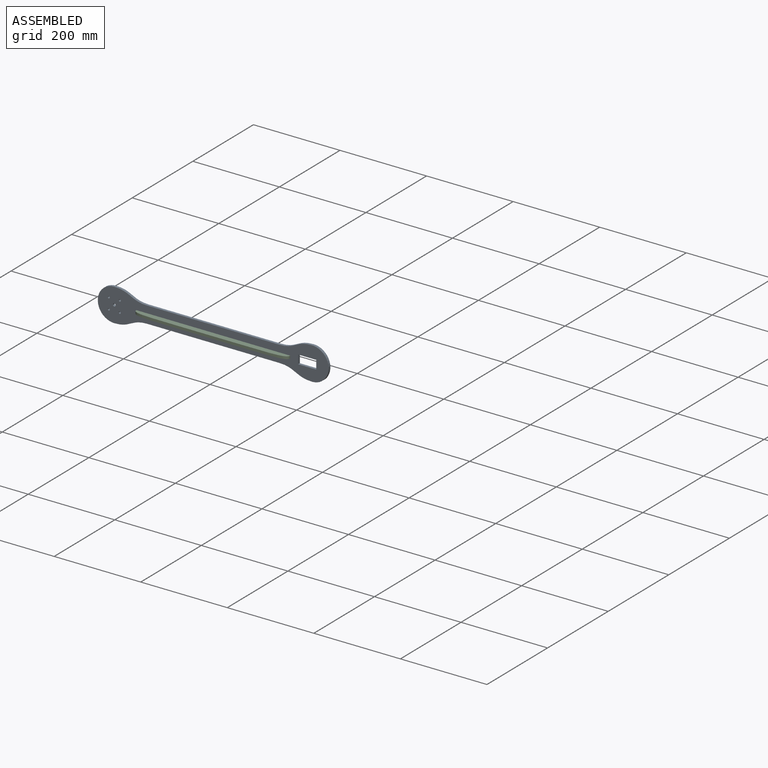
[diagram: assembled view]
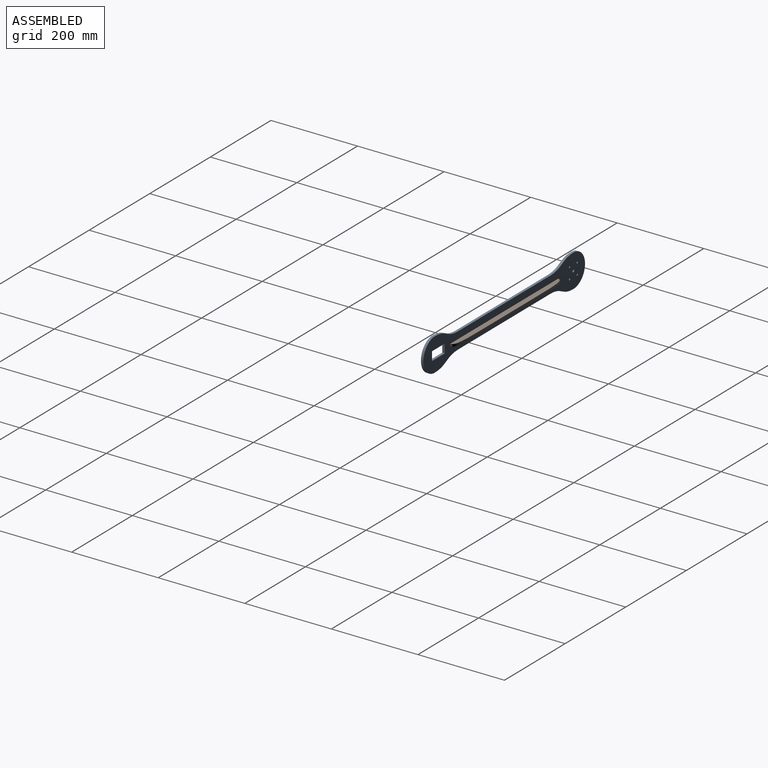
[diagram: assembled view, second angle]
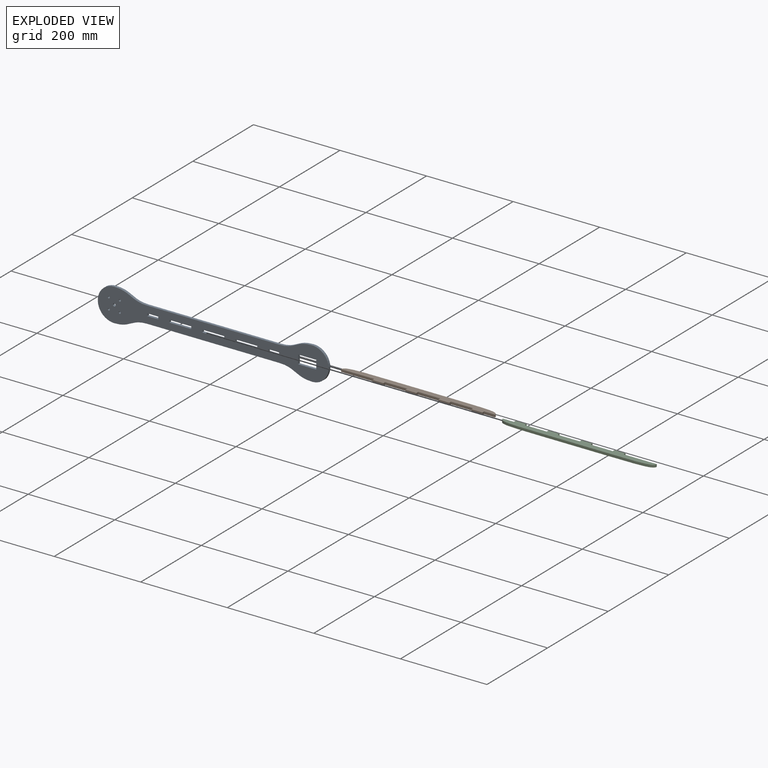
[diagram: exploded view]
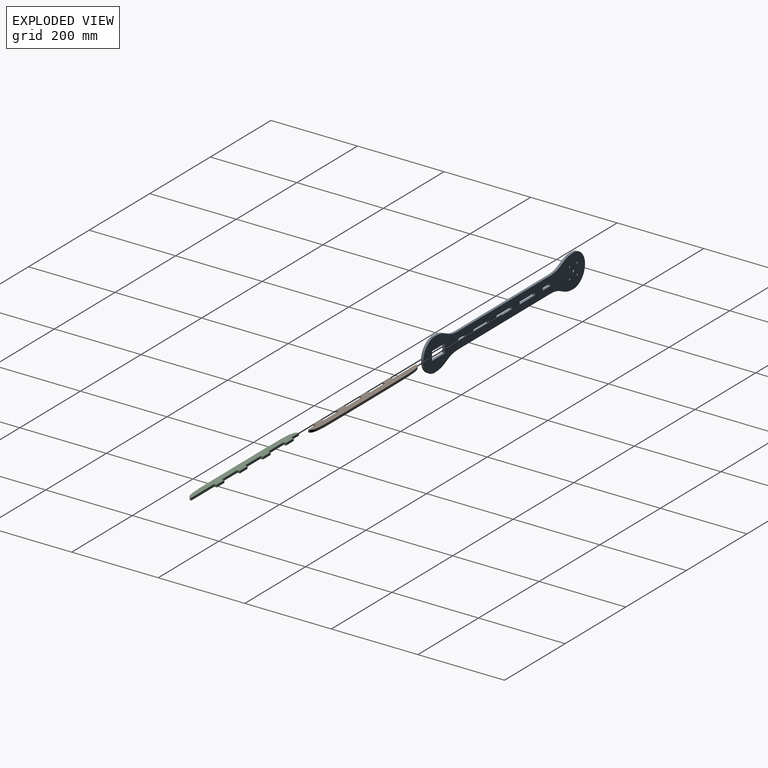
[diagram: exploded view, second angle]
ASSEMBLY  parts=3 mates=2
PART A: 39 faces, bbox 533.4x5.7x76.2 mm
  f0: plane 5.69x5.69mm, normal (-1,0,0), area 32.4mm2, adj f1,f36,f37,f38
  f1: plane 25.4x5.69mm, normal (0,0,1), area 144.5mm2, adj f0,f2,f37,f38
  f2: plane 5.69x5.69mm, normal (1,0,0), area 32.4mm2, adj f1,f36,f37,f38
  f3: plane 5.69x5.69mm, normal (1,0,0), area 32.4mm2, adj f4,f25,f37,f38
  f4: plane 25.4x5.69mm, normal (0,0,-1), area 144.5mm2, adj f3,f5,f37,f38
  f5: plane 5.69x5.69mm, normal (-1,0,0), area 32.4mm2, adj f4,f25,f37,f38
  f6: plane 5.69x5.69mm, normal (1,0,0), area 32.4mm2, adj f7,f26,f37,f38
  f7: plane 50.8x5.69mm, normal (0,0,-1), area 289mm2, adj f6,f8,f37,f38
  f8: plane 5.69x5.69mm, normal (-1,0,0), area 32.4mm2, adj f7,f26,f37,f38
  f9: plane 5.69x5.69mm, normal (1,0,0), area 32.4mm2, adj f10,f27,f37,f38
  f10: plane 50.8x5.69mm, normal (0,0,-1), area 289mm2, adj f9,f11,f37,f38
  f11: plane 5.69x5.69mm, normal (-1,0,0), area 32.4mm2, adj f10,f27,f37,f38
  f12: plane 50.8x5.69mm, normal (0,0,1), area 289mm2, adj f13,f28,f37,f38
  f13: plane 5.69x5.69mm, normal (1,0,0), area 32.4mm2, adj f12,f14,f37,f38
  f14: plane 50.8x5.69mm, normal (0,0,-1), area 289mm2, adj f13,f28,f37,f38
  f15: plane 41.91x5.69mm, normal (0,0,-1), area 238.5mm2, adj f16,f29,f37,f38
  f16: plane 20.32x5.69mm, normal (-1,0,0), area 115.6mm2, adj f15,f17,f37,f38
  f17: plane 41.91x5.69mm, normal (0,0,1), area 238.5mm2, adj f16,f29,f37,f38
  f18: cylinder r=38.1mm len=76.2mm, axis (0,1,0), area 681mm2, adj f19,f34,f37,f38
  f19: extruded ~76.2x19.05mm, area 452.1mm2, adj f18,f20,f37,f38
  f20: plane 304.8x5.69mm, normal (0,0,-1), area 1734.2mm2, adj f19,f21,f37,f38
  f21: extruded ~76.2x19.05mm, area 452.1mm2, adj f20,f22,f37,f38
  f22: cylinder r=38.1mm len=76.2mm, axis (0,1,0), area 681mm2, adj f21,f23,f37,f38
  f23: extruded ~76.2x19.05mm, area 452.1mm2, adj f22,f24,f37,f38
  f24: plane 304.8x5.69mm, normal (0,0,1), area 1734.2mm2, adj f23,f34,f37,f38
  f25: plane 25.4x5.69mm, normal (0,0,1), area 144.5mm2, adj f3,f5,f37,f38
  f26: plane 50.8x5.69mm, normal (0,0,1), area 289mm2, adj f6,f8,f37,f38
  f27: plane 50.8x5.69mm, normal (0,0,1), area 289mm2, adj f9,f11,f37,f38
  f28: plane 5.69x5.69mm, normal (-1,0,0), area 32.4mm2, adj f12,f14,f37,f38
  f29: plane 20.32x5.69mm, normal (1,0,0), area 115.6mm2, adj f15,f17,f37,f38
  f30: cylinder r=2.32mm len=5.69mm, axis (0,1,0), area 83.1mm2, adj f37,f38
  f31: cylinder r=2.32mm len=5.69mm, axis (0,1,0), area 83.1mm2, adj f37,f38
  f32: cylinder r=3.17mm len=6.35mm, axis (0,1,0), area 113.5mm2, adj f37,f38
  f33: cylinder r=2.32mm len=5.69mm, axis (0,1,0), area 83.1mm2, adj f37,f38
  f34: extruded ~76.2x19.05mm, area 452.1mm2, adj f18,f24,f37,f38
  f35: cylinder r=2.32mm len=5.69mm, axis (0,1,0), area 83.1mm2, adj f37,f38
  f36: plane 25.4x5.69mm, normal (0,0,-1), area 144.5mm2, adj f0,f2,f37,f38
  f37: plane 533.4x76.2mm, normal (0,-1,0), area 22775.6mm2, adj f0,f1,f2,f3,f4,f5,f6,f7
  f38: plane 533.4x76.2mm, normal (0,1,0), area 22775.6mm2, adj f0,f1,f2,f3,f4,f5,f6,f7
PART B: 22 faces, bbox 355.6x5.7x18.4 mm
  f0: extruded ~101.6x12.7mm, area 605.9mm2, adj f1,f19,f20,f21
  f1: plane 25.4x5.69mm, normal (0,0,-1), area 144.5mm2, adj f0,f2,f20,f21
  f2: plane 5.69x5.69mm, normal (-1,0,0), area 32.4mm2, adj f1,f3,f20,f21
  f3: plane 25.4x5.69mm, normal (0,0,-1), area 144.5mm2, adj f2,f4,f20,f21
  f4: plane 5.69x5.69mm, normal (1,0,0), area 32.4mm2, adj f3,f5,f20,f21
  f5: plane 50.8x5.69mm, normal (0,0,-1), area 289mm2, adj f4,f6,f20,f21
  f6: plane 5.69x5.69mm, normal (-1,0,0), area 32.4mm2, adj f5,f7,f20,f21
  f7: plane 25.4x5.69mm, normal (0,0,-1), area 144.5mm2, adj f6,f8,f20,f21
  f8: plane 5.69x5.69mm, normal (1,0,0), area 32.4mm2, adj f7,f9,f20,f21
  f9: plane 50.8x5.69mm, normal (0,0,-1), area 289mm2, adj f8,f10,f20,f21
  f10: plane 5.69x5.69mm, normal (-1,0,0), area 32.4mm2, adj f9,f11,f20,f21
  f11: plane 25.4x5.69mm, normal (0,0,-1), area 144.5mm2, adj f10,f12,f20,f21
  f12: plane 5.69x5.69mm, normal (1,0,0), area 32.4mm2, adj f11,f13,f20,f21
  f13: plane 50.8x5.69mm, normal (0,0,-1), area 289mm2, adj f12,f14,f20,f21
  f14: plane 5.69x5.69mm, normal (-1,0,0), area 32.4mm2, adj f13,f15,f20,f21
  f15: plane 25.4x5.69mm, normal (0,0,-1), area 144.5mm2, adj f14,f16,f20,f21
  f16: plane 5.69x5.69mm, normal (1,0,0), area 32.4mm2, adj f15,f17,f20,f21
  f17: plane 76.2x5.69mm, normal (0,0,-1), area 433.5mm2, adj f16,f18,f20,f21
  f18: extruded ~101.6x12.7mm, area 605.9mm2, adj f17,f19,f20,f21
  f19: plane 152.4x5.69mm, normal (0,0,1), area 867.1mm2, adj f0,f18,f20,f21
  f20: plane 355.6x18.39mm, normal (0,-1,0), area 4868.4mm2, adj f0,f1,f2,f3,f4,f5,f6,f7
  f21: plane 355.6x18.39mm, normal (0,1,0), area 4868.4mm2, adj f0,f1,f2,f3,f4,f5,f6,f7
PART C: same geometry as B
PLACE A t=(104.22,112.15,26.53)mm
PLACE B rot(axis=(0,0.71,0.71),180deg) t=(510.62,106.46,29.37)mm
PLACE C rot(axis=(1,0,0),90deg) t=(155.02,112.15,29.37)mm
MATE fastened A.f3 <-> B.f4  axis (1,0,0) through (459.82,112.15,23.68)mm
MATE fastened A.f0 <-> C.f4  axis (-1,0,0) through (205.82,106.46,23.68)mm
